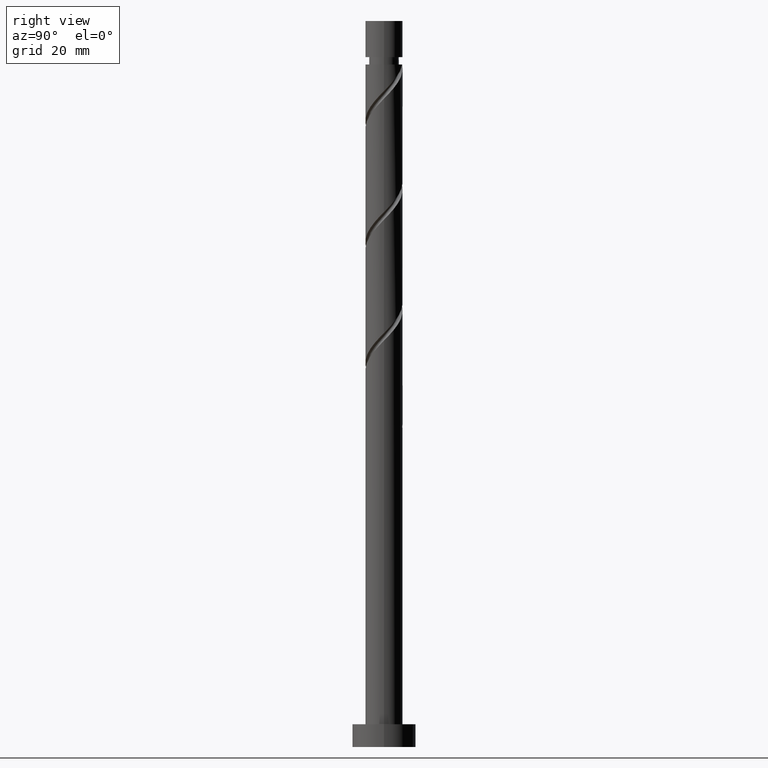
[diagram: clean part render]
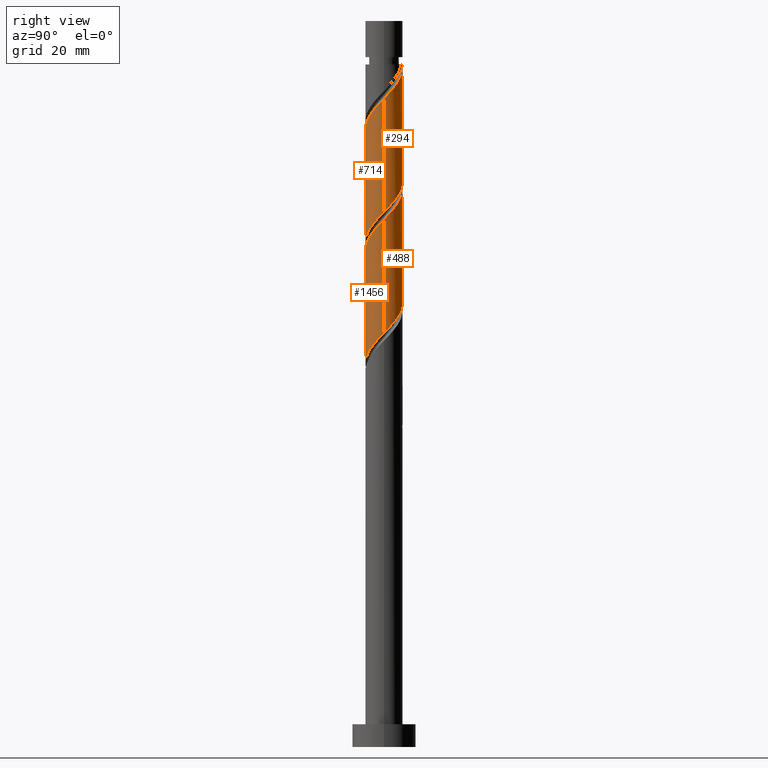
[diagram: same view with one multi-face feature highlighted, each face labeled with its STEP entity id]
A machine part, right view. The highlighted faces form ONE feature: a constant-radius fillet chain: 4 tangent blend faces with common blend radius 4.1 mm. The faces share edges in the B-rep.
Their STEP definitions:
[1] entity #1456 (Cylinder):
#10 = CARTESIAN_POINT ( 'NONE',  ( -0.3491609805032963032, -4.085105458821597146, 109.1961636561453588 ) ) ;
#28 = CARTESIAN_POINT ( 'NONE',  ( 2.436092808849637859, -3.350067383216988492, 112.2264666864483615 ) ) ;
#72 = CARTESIAN_POINT ( 'NONE',  ( 3.281236982628831456, -2.528039459591578275, 113.4385878985696081 ) ) ;
#129 = CARTESIAN_POINT ( 'NONE',  ( 0.000000000000000000, 0.000000000000000000, 160.0000000000000000 ) ) ;
#139 = CARTESIAN_POINT ( 'NONE',  ( -0.9365104741622179985, -4.034903688715220760, 108.5901030500847639 ) ) ;
#196 =( BOUNDED_CURVE ( )  B_SPLINE_CURVE ( 2, ( #386, #1414, #782, #1295, #272, #1174, #663, #262, #916, #1283, #1433, #139, #10, #280, #527, #790, #1303, #28, #508, #72, #1061, #1079, #798, #1087, #932 ),
 .UNSPECIFIED., .F., .T. ) 
 B_SPLINE_CURVE_WITH_KNOTS ( ( 3, 2, 2, 2, 2, 2, 2, 2, 2, 2, 2, 2, 3 ),
 ( 0.3045252162417512176, 0.3068181818181817677, 0.3181818181818182323, 0.3295454545454545858, 0.3409090909090909394, 0.3522727272727272929, 0.3636363636363636465, 0.3750000000000000000, 0.3863636363636363535, 0.3977272727272727071, 0.4090909090909090606, 0.4204545454545454142, 0.4295252162417513841 ),
 .UNSPECIFIED. ) 
 CURVE ( )  GEOMETRIC_REPRESENTATION_ITEM ( )  RATIONAL_B_SPLINE_CURVE ( ( 0.9061101570135607908, 0.9072237824201428991, 0.9090909090909204959, 0.8998376744372229563, 0.9090909090909204959, 0.8998376744372229563, 0.9090909090909204959, 0.8998376744372229563, 0.9090909090909204959, 0.8998376744372229563, 0.9090909090909204959, 0.8998376744372229563, 0.9090909090909204959, 0.8998376744372229563, 0.9090909090909204959, 0.8998376744372229563, 0.9090909090909204959, 0.8998376744372229563, 0.9090909090909204959, 0.8998376744372229563, 0.9090909090909204959, 0.8998376744372229563, 0.9090909090909204959, 0.9017048011080004422, 0.9061101570135610128 ) ) 
 REPRESENTATION_ITEM ( '' )  );
#204 = CARTESIAN_POINT ( 'NONE',  ( 4.059318004229828247, -0.8242796770264084749, 90.40828486826657695 ) ) ;
#214 = CARTESIAN_POINT ( 'NONE',  ( -3.993834187014790871, -0.9269781478718408518, 78.89313335311504716 ) ) ;
#241 = DIRECTION ( 'NONE',  ( -0.000000000000000000, -0.000000000000000000, -1.000000000000000000 ) ) ;
#262 = CARTESIAN_POINT ( 'NONE',  ( -2.969276373543973335, -2.888061194458452885, 106.1658606258423134 ) ) ;
#272 = CARTESIAN_POINT ( 'NONE',  ( -3.860989342997054319, -1.379406137895296647, 104.3476788076604720 ) ) ;
#280 = CARTESIAN_POINT ( 'NONE',  ( 0.2381885131556253921, -4.135307228927973533, 109.8022242622059395 ) ) ;
#300 = CARTESIAN_POINT ( 'NONE',  ( -1.914841846274432990, -3.625380077144507496, 82.52949698947867319 ) ) ;
#308 = CARTESIAN_POINT ( 'NONE',  ( -4.100000000000000533, 3.499896044618180531E-15, 77.92440601423412261 ) ) ;
#317 = CARTESIAN_POINT ( 'NONE',  ( -4.100000000000004974, -2.497789057483899821E-15, 102.8921637222990029 ) ) ;
#329 = CARTESIAN_POINT ( 'NONE',  ( -2.858664895739232215, -2.939053421404278943, 81.31737577735745504 ) ) ;
#354 = VECTOR ( 'NONE', #241, 1000.000000000000000 ) ;
#386 = CARTESIAN_POINT ( 'NONE',  ( -4.100000000000004974, -2.497789057483899821E-15, 102.8921637222990029 ) ) ;
#413 = EDGE_CURVE ( 'NONE', #505, #509, #1463, .T. ) ;
#433 = CARTESIAN_POINT ( 'NONE',  ( 4.100000000000000533, -4.292607541903494346E-15, 91.25773934756747963 ) ) ;
#442 = CARTESIAN_POINT ( 'NONE',  ( 3.662660681764268400, -1.934532598764185041, 89.19616365614537301 ) ) ;
#462 = CARTESIAN_POINT ( 'NONE',  ( 4.099999999999999645, -0.1179796587476802661, 91.13564134284926865 ) ) ;
#505 = VERTEX_POINT ( 'NONE', #433 ) ;
#508 = CARTESIAN_POINT ( 'NONE',  ( 2.858664895739234879, -2.939053421404283384, 112.8325272925089848 ) ) ;
#509 = VERTEX_POINT ( 'NONE', #308 ) ;
#515 = VERTEX_POINT ( 'NONE', #317 ) ;
#527 = CARTESIAN_POINT ( 'NONE',  ( 0.8158896984274283115, -4.018000000000004235, 110.4082848682665201 ) ) ;
#582 = CARTESIAN_POINT ( 'NONE',  ( 4.100000000000000533, -4.292607541903494346E-15, 91.25773934756747963 ) ) ;
#594 = EDGE_CURVE ( 'NONE', #515, #509, #751, .T. ) ;
#607 = CARTESIAN_POINT ( 'NONE',  ( -4.099999999999999645, 0.000000000000000000, 160.0000000000000000 ) ) ;
#663 = CARTESIAN_POINT ( 'NONE',  ( -3.315968527654123754, -2.411296896611319962, 105.5598000197817328 ) ) ;
#699 = CARTESIAN_POINT ( 'NONE',  ( 3.860989342997047213, -1.379406137895296425, 89.80222426220595366 ) ) ;
#716 = ORIENTED_EDGE ( 'NONE', *, *, #1609, .F. ) ;
#720 = CARTESIAN_POINT ( 'NONE',  ( -4.100000000000000533, 3.499896044618180531E-15, 77.92440601423412261 ) ) ;
#751 = LINE ( 'NONE', #607, #354 ) ;
#773 = FACE_OUTER_BOUND ( 'NONE', #1415, .T. ) ;
#782 = CARTESIAN_POINT ( 'NONE',  ( -4.093215763958131248, -0.2357640975311769138, 103.1355575955392823 ) ) ;
#790 = CARTESIAN_POINT ( 'NONE',  ( 1.393590883699231009, -3.900692771072035825, 111.0143454743271434 ) ) ;
#798 = CARTESIAN_POINT ( 'NONE',  ( 3.993834187014794868, -0.9269781478718425172, 115.2567697167514069 ) ) ;
#818 = CARTESIAN_POINT ( 'NONE',  ( -3.281236982628828791, -2.528039459591573834, 80.71131517129687438 ) ) ;
#868 = VECTOR ( 'NONE', #1020, 1000.000000000000000 ) ;
#881 = ORIENTED_EDGE ( 'NONE', *, *, #413, .F. ) ;
#884 = EDGE_CURVE ( 'NONE', #1292, #505, #1157, .T. ) ;
#916 = CARTESIAN_POINT ( 'NONE',  ( -2.502307663024829765, -3.247838721298710762, 106.7719212319029083 ) ) ;
#932 = CARTESIAN_POINT ( 'NONE',  ( 4.100000000000004974, 2.348220850448935583E-15, 116.2254970556323599 ) ) ;
#948 = AXIS2_PLACEMENT_3D ( 'NONE', #129, #1047, #1563 ) ;
#952 = CARTESIAN_POINT ( 'NONE',  ( -3.860554850343155486, -1.501204813779628777, 79.49919395917565623 ) ) ;
#959 = CARTESIAN_POINT ( 'NONE',  ( 1.485924713333949043, -3.821259968427091369, 86.16586062584234185 ) ) ;
#965 = CARTESIAN_POINT ( 'NONE',  ( 2.969276373543970671, -2.888061194458449776, 87.98404244402416907 ) ) ;
#1020 = DIRECTION ( 'NONE',  ( -0.000000000000000000, -0.000000000000000000, -1.000000000000000000 ) ) ;
#1038 = CYLINDRICAL_SURFACE ( 'NONE', #948, 4.099999999999999645 ) ;
#1047 = DIRECTION ( 'NONE',  ( -0.000000000000000000, -0.000000000000000000, -1.000000000000000000 ) ) ;
#1061 = CARTESIAN_POINT ( 'NONE',  ( 3.570895916485996135, -2.014622136685605192, 114.0446485046301888 ) ) ;
#1066 = CARTESIAN_POINT ( 'NONE',  ( -0.8158896984274290887, -4.017999999999998906, 83.74161820159991976 ) ) ;
#1079 = CARTESIAN_POINT ( 'NONE',  ( 3.860554850343161259, -1.501204813779630332, 114.6507091106907836 ) ) ;
#1085 = CARTESIAN_POINT ( 'NONE',  ( -4.099999999999998757, -0.4695686022790074299, 78.41036596720542207 ) ) ;
#1087 = CARTESIAN_POINT ( 'NONE',  ( 4.100000000000005862, -0.4695686022790001579, 115.7395371026610036 ) ) ;
#1101 = CARTESIAN_POINT ( 'NONE',  ( 2.035338952505681753, -3.607616248138966419, 86.77192123190292250 ) ) ;
#1114 = CARTESIAN_POINT ( 'NONE',  ( 4.100000000000004974, 2.348220850448935583E-15, 116.2254970556323599 ) ) ;
#1157 = LINE ( 'NONE', #1297, #868 ) ;
#1174 = CARTESIAN_POINT ( 'NONE',  ( -3.662660681764272397, -1.934532598764186373, 104.9537394137211095 ) ) ;
#1204 = CARTESIAN_POINT ( 'NONE',  ( 3.315968527654118869, -2.411296896611316853, 88.59010305008476394 ) ) ;
#1211 = CARTESIAN_POINT ( 'NONE',  ( 0.3491609805032941383, -4.085105458821592705, 84.95373941372109527 ) ) ;
#1219 = CARTESIAN_POINT ( 'NONE',  ( -2.436092808849634750, -3.350067383216984940, 81.92343638341810674 ) ) ;
#1229 = CARTESIAN_POINT ( 'NONE',  ( -3.570895916485992139, -2.014622136685600751, 80.10525456523626531 ) ) ;
#1258 = ORIENTED_EDGE ( 'NONE', *, *, #884, .F. ) ;
#1278 = ORIENTED_EDGE ( 'NONE', *, *, #594, .T. ) ;
#1283 = CARTESIAN_POINT ( 'NONE',  ( -2.035338952505686194, -3.607616248138969528, 107.3779818379635316 ) ) ;
#1292 = VERTEX_POINT ( 'NONE', #1114 ) ;
#1295 = CARTESIAN_POINT ( 'NONE',  ( -4.059318004229832688, -0.8242796770264076978, 103.7416182015999055 ) ) ;
#1297 = CARTESIAN_POINT ( 'NONE',  ( 4.099999999999999645, 5.021051876504147385E-16, 160.0000000000000000 ) ) ;
#1303 = CARTESIAN_POINT ( 'NONE',  ( 1.914841846274433879, -3.625380077144512825, 111.6204060803877667 ) ) ;
#1360 = CARTESIAN_POINT ( 'NONE',  ( -0.2381885131556268631, -4.135307228927969980, 84.34767880766051462 ) ) ;
#1414 = CARTESIAN_POINT ( 'NONE',  ( -4.100000000000005862, -0.1179796587476673597, 103.0142617270172281 ) ) ;
#1415 = EDGE_LOOP ( 'NONE', ( #1258, #716, #1278, #881 ) ) ;
#1433 = CARTESIAN_POINT ( 'NONE',  ( -1.485924713333952374, -3.821259968427094478, 107.9840424440241407 ) ) ;
#1456 = ADVANCED_FACE ( 'NONE', ( #773 ), #1038, .T. ) ;
#1462 = CARTESIAN_POINT ( 'NONE',  ( 4.093215763958126807, -0.2357640975311781073, 91.01434547432720024 ) ) ;
#1463 =( BOUNDED_CURVE ( )  B_SPLINE_CURVE ( 2, ( #582, #462, #1462, #204, #699, #442, #1204, #965, #1597, #1101, #959, #1489, #1211, #1360, #1066, #1623, #300, #1219, #329, #818, #1229, #952, #214, #1085, #720 ),
 .UNSPECIFIED., .F., .T. ) 
 B_SPLINE_CURVE_WITH_KNOTS ( ( 3, 2, 2, 2, 2, 2, 2, 2, 2, 2, 2, 2, 3 ),
 ( 0.8045252162417514397, 0.8068181818181817677, 0.8181818181818182323, 0.8295454545454545858, 0.8409090909090909394, 0.8522727272727272929, 0.8636363636363636465, 0.8750000000000000000, 0.8863636363636363535, 0.8977272727272727071, 0.9090909090909090606, 0.9204545454545454142, 0.9295252162417512176 ),
 .UNSPECIFIED. ) 
 CURVE ( )  GEOMETRIC_REPRESENTATION_ITEM ( )  RATIONAL_B_SPLINE_CURVE ( ( 0.9061101570135555727, 0.9072237824201376810, 0.9090909090909150558, 0.8998376744372174052, 0.9090909090909150558, 0.8998376744372174052, 0.9090909090909150558, 0.8998376744372174052, 0.9090909090909150558, 0.8998376744372174052, 0.9090909090909150558, 0.8998376744372174052, 0.9090909090909150558, 0.8998376744372174052, 0.9090909090909150558, 0.8998376744372174052, 0.9090909090909150558, 0.8998376744372174052, 0.9090909090909150558, 0.8998376744372174052, 0.9090909090909150558, 0.8998376744372174052, 0.9090909090909150558, 0.9017048011079950021, 0.9061101570135553507 ) ) 
 REPRESENTATION_ITEM ( '' )  );
#1489 = CARTESIAN_POINT ( 'NONE',  ( 0.9365104741622172213, -4.034903688715216319, 85.55980001978169014 ) ) ;
#1563 = DIRECTION ( 'NONE',  ( -1.000000000000000000, 0.000000000000000000, 0.000000000000000000 ) ) ;
#1597 = CARTESIAN_POINT ( 'NONE',  ( 2.502307663024826212, -3.247838721298708098, 87.37798183796353158 ) ) ;
#1609 = EDGE_CURVE ( 'NONE', #515, #1292, #196, .T. ) ;
#1623 = CARTESIAN_POINT ( 'NONE',  ( -1.393590883699231231, -3.900692771072030052, 83.13555759553928226 ) ) ;
[2] entity #488 (Cylinder):
#83 = CARTESIAN_POINT ( 'NONE',  ( -2.436092808849637859, 3.350067383216989381, 125.5598000197817043 ) ) ;
#100 = CARTESIAN_POINT ( 'NONE',  ( 4.093215763958131248, 0.2357640975311764975, 116.4688909288726251 ) ) ;
#106 = CARTESIAN_POINT ( 'NONE',  ( -3.662660681764268400, 1.934532598764185041, 102.5294969894787016 ) ) ;
#112 = CARTESIAN_POINT ( 'NONE',  ( -3.860989342997047213, 1.379406137895296203, 103.1355575955393107 ) ) ;
#130 =( BOUNDED_CURVE ( )  B_SPLINE_CURVE ( 2, ( #1396, #988, #969, #596, #112, #106, #1097, #351, #1645, #1621, #880, #628, #1649, #621, #499, #1104, #1120, #1532, #366, #466, #1628, #980, #1502, #1372, #340 ),
 .UNSPECIFIED., .F., .T. ) 
 B_SPLINE_CURVE_WITH_KNOTS ( ( 3, 2, 2, 2, 2, 2, 2, 2, 2, 2, 2, 2, 3 ),
 ( 0.6795252162417512176, 0.6818181818181817677, 0.6931818181818182323, 0.7045454545454545858, 0.7159090909090909394, 0.7272727272727272929, 0.7386363636363636465, 0.7500000000000000000, 0.7613636363636363535, 0.7727272727272727071, 0.7840909090909090606, 0.7954545454545454142, 0.8045252162417514397 ),
 .UNSPECIFIED. ) 
 CURVE ( )  GEOMETRIC_REPRESENTATION_ITEM ( )  RATIONAL_B_SPLINE_CURVE ( ( 0.9061101570135553507, 0.9072237824201374590, 0.9090909090909150558, 0.8998376744372174052, 0.9090909090909150558, 0.8998376744372174052, 0.9090909090909150558, 0.8998376744372174052, 0.9090909090909150558, 0.8998376744372174052, 0.9090909090909150558, 0.8998376744372174052, 0.9090909090909150558, 0.8998376744372174052, 0.9090909090909150558, 0.8998376744372174052, 0.9090909090909150558, 0.8998376744372174052, 0.9090909090909150558, 0.8998376744372174052, 0.9090909090909150558, 0.8998376744372174052, 0.9090909090909150558, 0.9017048011079947800, 0.9061101570135555727 ) ) 
 REPRESENTATION_ITEM ( '' )  );
#219 = CARTESIAN_POINT ( 'NONE',  ( -3.570895916485996580, 2.014622136685604747, 127.3779818379635316 ) ) ;
#226 = CARTESIAN_POINT ( 'NONE',  ( -3.281236982628831456, 2.528039459591577387, 126.7719212319029225 ) ) ;
#239 = CARTESIAN_POINT ( 'NONE',  ( 3.315968527654123754, 2.411296896611318630, 118.8931333531150329 ) ) ;
#268 = ORIENTED_EDGE ( 'NONE', *, *, #884, .T. ) ;
#290 = CARTESIAN_POINT ( 'NONE',  ( -4.100000000000004974, -2.497789057483899821E-15, 129.5588303889656743 ) ) ;
#323 = DIRECTION ( 'NONE',  ( -1.000000000000000000, 0.000000000000000000, 0.000000000000000000 ) ) ;
#334 = CARTESIAN_POINT ( 'NONE',  ( 3.860989342997054319, 1.379406137895296203, 117.6810121409938148 ) ) ;
#340 = CARTESIAN_POINT ( 'NONE',  ( 4.100000000000000533, -4.292607541903494346E-15, 91.25773934756747963 ) ) ;
#351 = CARTESIAN_POINT ( 'NONE',  ( -2.969276373543969338, 2.888061194458450220, 101.3173757773574977 ) ) ;
#357 = CARTESIAN_POINT ( 'NONE',  ( 2.035338952505684862, 3.607616248138969972, 120.7113151712968460 ) ) ;
#366 = CARTESIAN_POINT ( 'NONE',  ( 2.858664895739231326, 2.939053421404278943, 94.65070911069079784 ) ) ;
#393 = ORIENTED_EDGE ( 'NONE', *, *, #1308, .F. ) ;
#405 = CARTESIAN_POINT ( 'NONE',  ( -4.099999999999999645, 0.000000000000000000, 160.0000000000000000 ) ) ;
#433 = CARTESIAN_POINT ( 'NONE',  ( 4.100000000000000533, -4.292607541903494346E-15, 91.25773934756747963 ) ) ;
#466 = CARTESIAN_POINT ( 'NONE',  ( 3.281236982628828347, 2.528039459591575611, 94.04464850463020298 ) ) ;
#488 = ADVANCED_FACE ( 'NONE', ( #690 ), #563, .T. ) ;
#491 = CARTESIAN_POINT ( 'NONE',  ( 0.9365104741622185536, 4.034903688715220760, 121.9234363834180641 ) ) ;
#499 = CARTESIAN_POINT ( 'NONE',  ( 0.8158896984274295328, 4.017999999999998906, 97.07495153493323414 ) ) ;
#505 = VERTEX_POINT ( 'NONE', #433 ) ;
#536 = LINE ( 'NONE', #405, #737 ) ;
#563 = CYLINDRICAL_SURFACE ( 'NONE', #1383, 4.099999999999999645 ) ;
#596 = CARTESIAN_POINT ( 'NONE',  ( -4.059318004229828247, 0.8242796770264079198, 103.7416182015999055 ) ) ;
#615 = VERTEX_POINT ( 'NONE', #883 ) ;
#621 = CARTESIAN_POINT ( 'NONE',  ( 0.2381885131556257806, 4.135307228927969092, 97.68101214099384322 ) ) ;
#628 = CARTESIAN_POINT ( 'NONE',  ( -0.9365104741622166662, 4.034903688715216319, 98.89313335311507558 ) ) ;
#690 = FACE_OUTER_BOUND ( 'NONE', #1524, .T. ) ;
#725 = CARTESIAN_POINT ( 'NONE',  ( 2.502307663024828432, 3.247838721298712095, 120.1052545652362511 ) ) ;
#737 = VECTOR ( 'NONE', #793, 1000.000000000000000 ) ;
#742 = CARTESIAN_POINT ( 'NONE',  ( -0.2381885131556249202, 4.135307228927973533, 123.1355575955392965 ) ) ;
#749 = CARTESIAN_POINT ( 'NONE',  ( -1.393590883699232341, 3.900692771072034937, 124.3476788076604862 ) ) ;
#793 = DIRECTION ( 'NONE',  ( -0.000000000000000000, -0.000000000000000000, -1.000000000000000000 ) ) ;
#816 = ORIENTED_EDGE ( 'NONE', *, *, #1361, .F. ) ;
#849 = CARTESIAN_POINT ( 'NONE',  ( 2.969276373543974223, 2.888061194458451997, 119.4991939591756562 ) ) ;
#850 = VERTEX_POINT ( 'NONE', #290 ) ;
#856 = CARTESIAN_POINT ( 'NONE',  ( -3.860554850343159039, 1.501204813779631664, 127.9840424440241122 ) ) ;
#868 = VECTOR ( 'NONE', #1020, 1000.000000000000000 ) ;
#873 = CARTESIAN_POINT ( 'NONE',  ( 1.485924713333951042, 3.821259968427094922, 121.3173757773574408 ) ) ;
#880 = CARTESIAN_POINT ( 'NONE',  ( -1.485924713333949043, 3.821259968427091369, 99.49919395917564202 ) ) ;
#883 = CARTESIAN_POINT ( 'NONE',  ( -4.100000000000000533, 3.499896044618180531E-15, 104.5910726809008082 ) ) ;
#884 = EDGE_CURVE ( 'NONE', #1292, #505, #1157, .T. ) ;
#955 = EDGE_CURVE ( 'NONE', #850, #615, #536, .T. ) ;
#969 = CARTESIAN_POINT ( 'NONE',  ( -4.093215763958126807, 0.2357640975311775799, 104.3476788076605004 ) ) ;
#980 = CARTESIAN_POINT ( 'NONE',  ( 3.860554850343157707, 1.501204813779627001, 92.83252729250897062 ) ) ;
#988 = CARTESIAN_POINT ( 'NONE',  ( -4.100000000000000533, 0.1179796587476682063, 104.4689746761825972 ) ) ;
#994 = CARTESIAN_POINT ( 'NONE',  ( -4.100000000000004974, -2.497789057483899821E-15, 129.5588303889656743 ) ) ;
#1004 = CARTESIAN_POINT ( 'NONE',  ( 0.3491609805032967473, 4.085105458821597146, 122.5294969894786874 ) ) ;
#1020 = DIRECTION ( 'NONE',  ( -0.000000000000000000, -0.000000000000000000, -1.000000000000000000 ) ) ;
#1077 = ORIENTED_EDGE ( 'NONE', *, *, #955, .F. ) ;
#1097 = CARTESIAN_POINT ( 'NONE',  ( -3.315968527654118425, 2.411296896611316853, 101.9234363834180783 ) ) ;
#1104 = CARTESIAN_POINT ( 'NONE',  ( 1.393590883699231453, 3.900692771072030052, 96.46889092887265349 ) ) ;
#1114 = CARTESIAN_POINT ( 'NONE',  ( 4.100000000000004974, 2.348220850448935583E-15, 116.2254970556323599 ) ) ;
#1120 = CARTESIAN_POINT ( 'NONE',  ( 1.914841846274433435, 3.625380077144507496, 95.86283032281203020 ) ) ;
#1128 = CARTESIAN_POINT ( 'NONE',  ( -2.858664895739234879, 2.939053421404283384, 126.1658606258423561 ) ) ;
#1157 = LINE ( 'NONE', #1297, #868 ) ;
#1225 = CARTESIAN_POINT ( 'NONE',  ( -1.914841846274434767, 3.625380077144511493, 124.9537394137210811 ) ) ;
#1232 = CARTESIAN_POINT ( 'NONE',  ( -4.100000000000004974, 0.4695686022790022118, 129.0728704359943322 ) ) ;
#1254 = CARTESIAN_POINT ( 'NONE',  ( -3.993834187014794423, 0.9269781478718429613, 128.5901030500847355 ) ) ;
#1292 = VERTEX_POINT ( 'NONE', #1114 ) ;
#1297 = CARTESIAN_POINT ( 'NONE',  ( 4.099999999999999645, 5.021051876504147385E-16, 160.0000000000000000 ) ) ;
#1308 = EDGE_CURVE ( 'NONE', #1292, #850, #1520, .T. ) ;
#1361 = EDGE_CURVE ( 'NONE', #615, #505, #130, .T. ) ;
#1372 = CARTESIAN_POINT ( 'NONE',  ( 4.100000000000002309, 0.4695686022789947733, 91.74369930053876487 ) ) ;
#1379 = CARTESIAN_POINT ( 'NONE',  ( 4.100000000000004974, 0.1179796587476756864, 116.3475950603505851 ) ) ;
#1383 = AXIS2_PLACEMENT_3D ( 'NONE', #1472, #1590, #323 ) ;
#1390 = CARTESIAN_POINT ( 'NONE',  ( -0.8158896984274280895, 4.018000000000004235, 123.7416182015999198 ) ) ;
#1396 = CARTESIAN_POINT ( 'NONE',  ( -4.100000000000000533, 3.499896044618180531E-15, 104.5910726809008082 ) ) ;
#1472 = CARTESIAN_POINT ( 'NONE',  ( 0.000000000000000000, 0.000000000000000000, 160.0000000000000000 ) ) ;
#1495 = CARTESIAN_POINT ( 'NONE',  ( 4.100000000000004974, 2.348220850448935583E-15, 116.2254970556323599 ) ) ;
#1502 = CARTESIAN_POINT ( 'NONE',  ( 3.993834187014790871, 0.9269781478718395196, 92.22646668644837575 ) ) ;
#1520 =( BOUNDED_CURVE ( )  B_SPLINE_CURVE ( 2, ( #1495, #1379, #100, #1522, #334, #1636, #239, #849, #725, #357, #873, #491, #1004, #742, #1390, #749, #1225, #83, #1128, #226, #219, #856, #1254, #1232, #994 ),
 .UNSPECIFIED., .F., .T. ) 
 B_SPLINE_CURVE_WITH_KNOTS ( ( 3, 2, 2, 2, 2, 2, 2, 2, 2, 2, 2, 2, 3 ),
 ( 0.4295252162417513841, 0.4318181818181817677, 0.4431818181818182323, 0.4545454545454545858, 0.4659090909090909394, 0.4772727272727272929, 0.4886363636363636465, 0.5000000000000000000, 0.5113636363636363535, 0.5227272727272727071, 0.5340909090909091717, 0.5454545454545454142, 0.5545252162417514397 ),
 .UNSPECIFIED. ) 
 CURVE ( )  GEOMETRIC_REPRESENTATION_ITEM ( )  RATIONAL_B_SPLINE_CURVE ( ( 0.9061101570135610128, 0.9072237824201430101, 0.9090909090909204959, 0.8998376744372229563, 0.9090909090909204959, 0.8998376744372229563, 0.9090909090909204959, 0.8998376744372229563, 0.9090909090909204959, 0.8998376744372229563, 0.9090909090909204959, 0.8998376744372229563, 0.9090909090909204959, 0.8998376744372229563, 0.9090909090909204959, 0.8998376744372229563, 0.9090909090909204959, 0.8998376744372229563, 0.9090909090909204959, 0.8998376744372229563, 0.9090909090909204959, 0.8998376744372229563, 0.9090909090909204959, 0.9017048011080003311, 0.9061101570135610128 ) ) 
 REPRESENTATION_ITEM ( '' )  );
#1522 = CARTESIAN_POINT ( 'NONE',  ( 4.059318004229832688, 0.8242796770264073647, 117.0749515349332199 ) ) ;
#1524 = EDGE_LOOP ( 'NONE', ( #393, #268, #816, #1077 ) ) ;
#1532 = CARTESIAN_POINT ( 'NONE',  ( 2.436092808849635194, 3.350067383216984052, 95.25676971675143534 ) ) ;
#1590 = DIRECTION ( 'NONE',  ( -0.000000000000000000, -0.000000000000000000, -1.000000000000000000 ) ) ;
#1621 = CARTESIAN_POINT ( 'NONE',  ( -2.035338952505683086, 3.607616248138966419, 100.1052545652362653 ) ) ;
#1628 = CARTESIAN_POINT ( 'NONE',  ( 3.570895916485992139, 2.014622136685602083, 93.43858789856960811 ) ) ;
#1636 = CARTESIAN_POINT ( 'NONE',  ( 3.662660681764273285, 1.934532598764185485, 118.2870727470544381 ) ) ;
#1645 = CARTESIAN_POINT ( 'NONE',  ( -2.502307663024826656, 3.247838721298707654, 100.7113151712968744 ) ) ;
#1649 = CARTESIAN_POINT ( 'NONE',  ( -0.3491609805032953595, 4.085105458821591817, 98.28707274705446650 ) ) ;
[3] entity #714 (Cylinder):
#87 = CARTESIAN_POINT ( 'NONE',  ( -2.436092808849634750, -3.350067383216984940, 108.5901030500847781 ) ) ;
#109 = CARTESIAN_POINT ( 'NONE',  ( -0.3491609805032963032, -4.085105458821597146, 135.8628303228120160 ) ) ;
#115 = CARTESIAN_POINT ( 'NONE',  ( 0.000000000000000000, 0.000000000000000000, 160.0000000000000000 ) ) ;
#124 = CARTESIAN_POINT ( 'NONE',  ( -1.485924713333952374, -3.821259968427094478, 134.6507091106908263 ) ) ;
#149 = CARTESIAN_POINT ( 'NONE',  ( 3.993834187014794868, -0.9269781478718425172, 141.9234363834181067 ) ) ;
#193 = EDGE_CURVE ( 'NONE', #202, #615, #769, .T. ) ;
#202 = VERTEX_POINT ( 'NONE', #1111 ) ;
#235 = CARTESIAN_POINT ( 'NONE',  ( -3.860989342997054319, -1.379406137895296647, 131.0143454743271434 ) ) ;
#274 = CARTESIAN_POINT ( 'NONE',  ( 3.281236982628831456, -2.528039459591578275, 140.1052545652362653 ) ) ;
#290 = CARTESIAN_POINT ( 'NONE',  ( -4.100000000000004974, -2.497789057483899821E-15, 129.5588303889656743 ) ) ;
#331 = CARTESIAN_POINT ( 'NONE',  ( 0.3491609805032941383, -4.085105458821592705, 111.6204060803877809 ) ) ;
#338 = CARTESIAN_POINT ( 'NONE',  ( 0.9365104741622172213, -4.034903688715216319, 112.2264666864484042 ) ) ;
#361 = CARTESIAN_POINT ( 'NONE',  ( -4.059318004229832688, -0.8242796770264076978, 130.4082848682665201 ) ) ;
#372 = VERTEX_POINT ( 'NONE', #1335 ) ;
#378 = CARTESIAN_POINT ( 'NONE',  ( 1.393590883699231009, -3.900692771072035825, 137.6810121409938290 ) ) ;
#380 = CARTESIAN_POINT ( 'NONE',  ( 4.100000000000000533, -0.1179796587476688724, 117.8023080095159401 ) ) ;
#405 = CARTESIAN_POINT ( 'NONE',  ( -4.099999999999999645, 0.000000000000000000, 160.0000000000000000 ) ) ;
#463 = CARTESIAN_POINT ( 'NONE',  ( 1.485924713333949043, -3.821259968427091369, 112.8325272925090133 ) ) ;
#473 = CARTESIAN_POINT ( 'NONE',  ( -3.860554850343155486, -1.501204813779628777, 106.1658606258423418 ) ) ;
#530 = CARTESIAN_POINT ( 'NONE',  ( 0.8158896984274283115, -4.018000000000004235, 137.0749515349332057 ) ) ;
#536 = LINE ( 'NONE', #405, #737 ) ;
#610 = CARTESIAN_POINT ( 'NONE',  ( -4.100000000000000533, 3.499896044618180531E-15, 104.5910726809008082 ) ) ;
#613 = LINE ( 'NONE', #1247, #895 ) ;
#615 = VERTEX_POINT ( 'NONE', #883 ) ;
#638 = ORIENTED_EDGE ( 'NONE', *, *, #1284, .F. ) ;
#640 = CARTESIAN_POINT ( 'NONE',  ( -0.9365104741622179985, -4.034903688715220760, 135.2567697167514211 ) ) ;
#648 = CARTESIAN_POINT ( 'NONE',  ( 3.860554850343161259, -1.501204813779630332, 141.3173757773574266 ) ) ;
#667 = CARTESIAN_POINT ( 'NONE',  ( 2.436092808849637859, -3.350067383216988492, 138.8931333531150756 ) ) ;
#714 = ADVANCED_FACE ( 'NONE', ( #1236 ), #1375, .T. ) ;
#715 = CARTESIAN_POINT ( 'NONE',  ( 3.860989342997047213, -1.379406137895296425, 116.4688909288726251 ) ) ;
#722 = EDGE_CURVE ( 'NONE', #850, #372, #1506, .T. ) ;
#730 = CARTESIAN_POINT ( 'NONE',  ( -3.570895916485992139, -2.014622136685600751, 106.7719212319029225 ) ) ;
#737 = VECTOR ( 'NONE', #793, 1000.000000000000000 ) ;
#745 = CARTESIAN_POINT ( 'NONE',  ( -3.662660681764272397, -1.934532598764186373, 131.6204060803877383 ) ) ;
#769 =( BOUNDED_CURVE ( )  B_SPLINE_CURVE ( 2, ( #1015, #380, #960, #893, #715, #1222, #1410, #1499, #1094, #1617, #463, #338, #331, #854, #966, #1362, #1230, #87, #1102, #1624, #730, #473, #1369, #1238, #610 ),
 .UNSPECIFIED., .F., .T. ) 
 B_SPLINE_CURVE_WITH_KNOTS ( ( 3, 2, 2, 2, 2, 2, 2, 2, 2, 2, 2, 2, 3 ),
 ( 0.5545252162417512176, 0.5568181818181817677, 0.5681818181818182323, 0.5795454545454545858, 0.5909090909090909394, 0.6022727272727272929, 0.6136363636363636465, 0.6250000000000000000, 0.6363636363636363535, 0.6477272727272727071, 0.6590909090909090606, 0.6704545454545454142, 0.6795252162417512176 ),
 .UNSPECIFIED. ) 
 CURVE ( )  GEOMETRIC_REPRESENTATION_ITEM ( )  RATIONAL_B_SPLINE_CURVE ( ( 0.9061101570135553507, 0.9072237824201374590, 0.9090909090909150558, 0.8998376744372174052, 0.9090909090909150558, 0.8998376744372174052, 0.9090909090909150558, 0.8998376744372174052, 0.9090909090909150558, 0.8998376744372174052, 0.9090909090909150558, 0.8998376744372174052, 0.9090909090909150558, 0.8998376744372174052, 0.9090909090909150558, 0.8998376744372174052, 0.9090909090909150558, 0.8998376744372174052, 0.9090909090909150558, 0.8998376744372174052, 0.9090909090909150558, 0.8998376744372174052, 0.9090909090909150558, 0.9017048011079950021, 0.9061101570135553507 ) ) 
 REPRESENTATION_ITEM ( '' )  );
#793 = DIRECTION ( 'NONE',  ( -0.000000000000000000, -0.000000000000000000, -1.000000000000000000 ) ) ;
#850 = VERTEX_POINT ( 'NONE', #290 ) ;
#854 = CARTESIAN_POINT ( 'NONE',  ( -0.2381885131556268631, -4.135307228927969980, 111.0143454743271718 ) ) ;
#867 = CARTESIAN_POINT ( 'NONE',  ( -4.100000000000004974, -0.1179796587476742431, 129.6809283936839279 ) ) ;
#883 = CARTESIAN_POINT ( 'NONE',  ( -4.100000000000000533, 3.499896044618180531E-15, 104.5910726809008082 ) ) ;
#893 = CARTESIAN_POINT ( 'NONE',  ( 4.059318004229828247, -0.8242796770264084749, 117.0749515349332484 ) ) ;
#895 = VECTOR ( 'NONE', #1240, 1000.000000000000000 ) ;
#896 = EDGE_LOOP ( 'NONE', ( #638, #1226, #1402, #1486 ) ) ;
#955 = EDGE_CURVE ( 'NONE', #850, #615, #536, .T. ) ;
#960 = CARTESIAN_POINT ( 'NONE',  ( 4.093215763958126807, -0.2357640975311781073, 117.6810121409938574 ) ) ;
#966 = CARTESIAN_POINT ( 'NONE',  ( -0.8158896984274290887, -4.017999999999998906, 110.4082848682665627 ) ) ;
#1013 = CARTESIAN_POINT ( 'NONE',  ( 4.100000000000004974, 2.348220850448935583E-15, 142.8921637222990455 ) ) ;
#1015 = CARTESIAN_POINT ( 'NONE',  ( 4.100000000000000533, -4.292607541903494346E-15, 117.9244060142341510 ) ) ;
#1026 = AXIS2_PLACEMENT_3D ( 'NONE', #115, #1243, #1639 ) ;
#1049 = CARTESIAN_POINT ( 'NONE',  ( 1.914841846274433879, -3.625380077144512825, 138.2870727470543954 ) ) ;
#1094 = CARTESIAN_POINT ( 'NONE',  ( 2.502307663024826212, -3.247838721298708098, 114.0446485046301888 ) ) ;
#1102 = CARTESIAN_POINT ( 'NONE',  ( -2.858664895739232215, -2.939053421404278943, 107.9840424440241691 ) ) ;
#1111 = CARTESIAN_POINT ( 'NONE',  ( 4.100000000000000533, -4.292607541903494346E-15, 117.9244060142341652 ) ) ;
#1147 = CARTESIAN_POINT ( 'NONE',  ( 3.570895916485996135, -2.014622136685605192, 140.7113151712968317 ) ) ;
#1184 = CARTESIAN_POINT ( 'NONE',  ( 4.100000000000004974, -0.4695686022790018788, 142.4062037693277034 ) ) ;
#1222 = CARTESIAN_POINT ( 'NONE',  ( 3.662660681764268400, -1.934532598764185041, 115.8628303228120444 ) ) ;
#1226 = ORIENTED_EDGE ( 'NONE', *, *, #722, .F. ) ;
#1230 = CARTESIAN_POINT ( 'NONE',  ( -1.914841846274432990, -3.625380077144507496, 109.1961636561453446 ) ) ;
#1236 = FACE_OUTER_BOUND ( 'NONE', #896, .T. ) ;
#1238 = CARTESIAN_POINT ( 'NONE',  ( -4.099999999999998757, -0.4695686022790074299, 105.0770326338720935 ) ) ;
#1240 = DIRECTION ( 'NONE',  ( -0.000000000000000000, -0.000000000000000000, -1.000000000000000000 ) ) ;
#1243 = DIRECTION ( 'NONE',  ( -0.000000000000000000, -0.000000000000000000, -1.000000000000000000 ) ) ;
#1247 = CARTESIAN_POINT ( 'NONE',  ( 4.099999999999999645, 5.021051876504147385E-16, 160.0000000000000000 ) ) ;
#1250 = CARTESIAN_POINT ( 'NONE',  ( -2.969276373543973335, -2.888061194458452885, 132.8325272925089848 ) ) ;
#1264 = CARTESIAN_POINT ( 'NONE',  ( -2.035338952505686194, -3.607616248138969528, 134.0446485046302030 ) ) ;
#1284 = EDGE_CURVE ( 'NONE', #372, #202, #613, .T. ) ;
#1335 = CARTESIAN_POINT ( 'NONE',  ( 4.100000000000004974, 2.348220850448935583E-15, 142.8921637222990455 ) ) ;
#1362 = CARTESIAN_POINT ( 'NONE',  ( -1.393590883699231231, -3.900692771072030052, 109.8022242622059821 ) ) ;
#1369 = CARTESIAN_POINT ( 'NONE',  ( -3.993834187014790871, -0.9269781478718408518, 105.5598000197817328 ) ) ;
#1375 = CYLINDRICAL_SURFACE ( 'NONE', #1026, 4.099999999999999645 ) ;
#1385 = CARTESIAN_POINT ( 'NONE',  ( -4.093215763958131248, -0.2357640975311769138, 129.8022242622059537 ) ) ;
#1402 = ORIENTED_EDGE ( 'NONE', *, *, #955, .T. ) ;
#1410 = CARTESIAN_POINT ( 'NONE',  ( 3.315968527654118869, -2.411296896611316853, 115.2567697167514069 ) ) ;
#1444 = CARTESIAN_POINT ( 'NONE',  ( 2.858664895739234879, -2.939053421404283384, 139.4991939591756420 ) ) ;
#1486 = ORIENTED_EDGE ( 'NONE', *, *, #193, .F. ) ;
#1499 = CARTESIAN_POINT ( 'NONE',  ( 2.969276373543970671, -2.888061194458449776, 114.6507091106907978 ) ) ;
#1506 =( BOUNDED_CURVE ( )  B_SPLINE_CURVE ( 2, ( #1516, #867, #1385, #361, #235, #745, #1653, #1250, #1534, #1264, #124, #640, #109, #1647, #530, #378, #1049, #667, #1444, #274, #1147, #648, #149, #1184, #1013 ),
 .UNSPECIFIED., .F., .T. ) 
 B_SPLINE_CURVE_WITH_KNOTS ( ( 3, 2, 2, 2, 2, 2, 2, 2, 2, 2, 2, 2, 3 ),
 ( 0.5545252162417514397, 0.5568181818181818787, 0.5681818181818181213, 0.5795454545454545858, 0.5909090909090908283, 0.6022727272727272929, 0.6136363636363636465, 0.6250000000000000000, 0.6363636363636363535, 0.6477272727272727071, 0.6590909090909091717, 0.6704545454545454142, 0.6795252162417514397 ),
 .UNSPECIFIED. ) 
 CURVE ( )  GEOMETRIC_REPRESENTATION_ITEM ( )  RATIONAL_B_SPLINE_CURVE ( ( 0.9061101570135610128, 0.9072237824201431211, 0.9090909090909204959, 0.8998376744372229563, 0.9090909090909204959, 0.8998376744372229563, 0.9090909090909204959, 0.8998376744372229563, 0.9090909090909204959, 0.8998376744372229563, 0.9090909090909204959, 0.8998376744372229563, 0.9090909090909204959, 0.8998376744372229563, 0.9090909090909204959, 0.8998376744372229563, 0.9090909090909204959, 0.8998376744372229563, 0.9090909090909204959, 0.8998376744372229563, 0.9090909090909204959, 0.8998376744372229563, 0.9090909090909204959, 0.9017048011080003311, 0.9061101570135610128 ) ) 
 REPRESENTATION_ITEM ( '' )  );
#1516 = CARTESIAN_POINT ( 'NONE',  ( -4.100000000000004974, -2.497789057483899821E-15, 129.5588303889656743 ) ) ;
#1534 = CARTESIAN_POINT ( 'NONE',  ( -2.502307663024829765, -3.247838721298710762, 133.4385878985695513 ) ) ;
#1617 = CARTESIAN_POINT ( 'NONE',  ( 2.035338952505681753, -3.607616248138966419, 113.4385878985695939 ) ) ;
#1624 = CARTESIAN_POINT ( 'NONE',  ( -3.281236982628828791, -2.528039459591573834, 107.3779818379635174 ) ) ;
#1639 = DIRECTION ( 'NONE',  ( -1.000000000000000000, 0.000000000000000000, 0.000000000000000000 ) ) ;
#1647 = CARTESIAN_POINT ( 'NONE',  ( 0.2381885131556253921, -4.135307228927973533, 136.4688909288725824 ) ) ;
#1653 = CARTESIAN_POINT ( 'NONE',  ( -3.315968527654123754, -2.411296896611319962, 132.2264666864483900 ) ) ;
[4] entity #294 (Cylinder):
#17 = CARTESIAN_POINT ( 'NONE',  ( 3.860989342997054319, 1.379406137895296203, 144.3476788076604862 ) ) ;
#32 = CARTESIAN_POINT ( 'NONE',  ( -0.8158896984274479625, 4.018000000000002458, 150.4082848682665770 ) ) ;
#34 = CARTESIAN_POINT ( 'NONE',  ( -4.059318004229828247, 0.8242796770264079198, 130.4082848682666054 ) ) ;
#37 = EDGE_LOOP ( 'NONE', ( #1613, #500, #362, #752, #342 ) ) ;
#41 = CARTESIAN_POINT ( 'NONE',  ( 0.9365104741622185536, 4.034903688715220760, 148.5901030500846787 ) ) ;
#53 = CARTESIAN_POINT ( 'NONE',  ( -2.969276373543969338, 2.888061194458450220, 127.9840424440241407 ) ) ;
#71 = CARTESIAN_POINT ( 'NONE',  ( 3.860554850343157707, 1.501204813779627001, 119.4991939591756562 ) ) ;
#79 = EDGE_CURVE ( 'NONE', #1348, #202, #350, .T. ) ;
#113 = VERTEX_POINT ( 'NONE', #1118 ) ;
#116 = EDGE_CURVE ( 'NONE', #113, #1348, #481, .T. ) ;
#164 = CARTESIAN_POINT ( 'NONE',  ( 2.035338952505684862, 3.607616248138969972, 147.3779818379634889 ) ) ;
#202 = VERTEX_POINT ( 'NONE', #1111 ) ;
#260 = EDGE_CURVE ( 'NONE', #372, #1529, #1110, .T. ) ;
#267 = CARTESIAN_POINT ( 'NONE',  ( -0.2381885131556422952, 4.135307228927974421, 149.8022242622059537 ) ) ;
#294 = ADVANCED_FACE ( 'NONE', ( #778 ), #532, .T. ) ;
#295 = CARTESIAN_POINT ( 'NONE',  ( -4.093215763958126807, 0.2357640975311775799, 131.0143454743271434 ) ) ;
#342 = ORIENTED_EDGE ( 'NONE', *, *, #368, .T. ) ;
#346 = CARTESIAN_POINT ( 'NONE',  ( -4.099999999999999645, 0.000000000000000000, 160.0000000000000000 ) ) ;
#350 =( BOUNDED_CURVE ( )  B_SPLINE_CURVE ( 2, ( #797, #1196, #295, #34, #409, #547, #700, #53, #556, #1578, #1188, #1457, #1327, #565, #1205, #1508, #1212, #1542, #1350, #837, #1632, #71, #1481, #1086, #1608 ),
 .UNSPECIFIED., .F., .T. ) 
 B_SPLINE_CURVE_WITH_KNOTS ( ( 3, 2, 2, 2, 2, 2, 2, 2, 2, 2, 2, 2, 3 ),
 ( 0.4295252162417514397, 0.4318181818181818232, 0.4431818181818181768, 0.4545454545454545303, 0.4659090909090908839, 0.4772727272727272929, 0.4886363636363636465, 0.5000000000000000000, 0.5113636363636363535, 0.5227272727272727071, 0.5340909090909090606, 0.5454545454545454142, 0.5545252162417512176 ),
 .UNSPECIFIED. ) 
 CURVE ( )  GEOMETRIC_REPRESENTATION_ITEM ( )  RATIONAL_B_SPLINE_CURVE ( ( 0.9061101570135554617, 0.9072237824201375700, 0.9090909090909150558, 0.8998376744372174052, 0.9090909090909150558, 0.8998376744372174052, 0.9090909090909150558, 0.8998376744372174052, 0.9090909090909150558, 0.8998376744372174052, 0.9090909090909150558, 0.8998376744372174052, 0.9090909090909150558, 0.8998376744372174052, 0.9090909090909150558, 0.8998376744372174052, 0.9090909090909150558, 0.8998376744372174052, 0.9090909090909150558, 0.8998376744372174052, 0.9090909090909150558, 0.8998376744372174052, 0.9090909090909150558, 0.9017048011079950021, 0.9061101570135553507 ) ) 
 REPRESENTATION_ITEM ( '' )  );
#355 = AXIS2_PLACEMENT_3D ( 'NONE', #1170, #844, #1344 ) ;
#362 = ORIENTED_EDGE ( 'NONE', *, *, #79, .F. ) ;
#368 = EDGE_CURVE ( 'NONE', #113, #1529, #1650, .T. ) ;
#372 = VERTEX_POINT ( 'NONE', #1335 ) ;
#391 = CARTESIAN_POINT ( 'NONE',  ( 4.059318004229832688, 0.8242796770264073647, 143.7416182015999198 ) ) ;
#399 = DIRECTION ( 'NONE',  ( -1.000000000000000000, 0.000000000000000000, 0.000000000000000000 ) ) ;
#409 = CARTESIAN_POINT ( 'NONE',  ( -3.860989342997047213, 1.379406137895296203, 129.8022242622059821 ) ) ;
#424 = CARTESIAN_POINT ( 'NONE',  ( 3.662660681764273285, 1.934532598764185485, 144.9537394137210526 ) ) ;
#475 = CARTESIAN_POINT ( 'NONE',  ( -4.100000000000000533, -2.228566284820977997E-15, 131.2577393475674228 ) ) ;
#481 = LINE ( 'NONE', #346, #971 ) ;
#500 = ORIENTED_EDGE ( 'NONE', *, *, #1284, .T. ) ;
#532 = CYLINDRICAL_SURFACE ( 'NONE', #550, 4.099999999999999645 ) ;
#547 = CARTESIAN_POINT ( 'NONE',  ( -3.662660681764268400, 1.934532598764185041, 129.1961636561453304 ) ) ;
#550 = AXIS2_PLACEMENT_3D ( 'NONE', #1035, #1289, #399 ) ;
#556 = CARTESIAN_POINT ( 'NONE',  ( -2.502307663024826656, 3.247838721298707654, 127.3779818379635458 ) ) ;
#565 = CARTESIAN_POINT ( 'NONE',  ( 0.2381885131556257806, 4.135307228927969092, 124.3476788076605430 ) ) ;
#613 = LINE ( 'NONE', #1247, #895 ) ;
#700 = CARTESIAN_POINT ( 'NONE',  ( -3.315968527654118425, 2.411296896611316853, 128.5901030500847355 ) ) ;
#723 = DIRECTION ( 'NONE',  ( -0.000000000000000000, -0.000000000000000000, -1.000000000000000000 ) ) ;
#752 = ORIENTED_EDGE ( 'NONE', *, *, #116, .F. ) ;
#764 = CARTESIAN_POINT ( 'NONE',  ( -0.8158896984274479625, 4.018000000000002458, 150.4082848682665770 ) ) ;
#778 = FACE_OUTER_BOUND ( 'NONE', #37, .T. ) ;
#797 = CARTESIAN_POINT ( 'NONE',  ( -4.100000000000000533, -2.228566284820977997E-15, 131.2577393475674228 ) ) ;
#837 = CARTESIAN_POINT ( 'NONE',  ( 3.281236982628828347, 2.528039459591575611, 120.7113151712968602 ) ) ;
#844 = DIRECTION ( 'NONE',  ( -0.000000000000000000, -0.000000000000000000, -1.000000000000000000 ) ) ;
#895 = VECTOR ( 'NONE', #1240, 1000.000000000000000 ) ;
#903 = CARTESIAN_POINT ( 'NONE',  ( 3.315968527654123754, 2.411296896611318630, 145.5598000197816475 ) ) ;
#912 = CARTESIAN_POINT ( 'NONE',  ( 4.093215763958131248, 0.2357640975311764975, 143.1355575955393249 ) ) ;
#921 = CARTESIAN_POINT ( 'NONE',  ( 1.485924713333951042, 3.821259968427094922, 147.9840424440241691 ) ) ;
#971 = VECTOR ( 'NONE', #723, 1000.000000000000000 ) ;
#1023 = CARTESIAN_POINT ( 'NONE',  ( 4.100000000000004974, 2.348220850448935583E-15, 142.8921637222990455 ) ) ;
#1035 = CARTESIAN_POINT ( 'NONE',  ( 0.000000000000000000, 0.000000000000000000, 160.0000000000000000 ) ) ;
#1086 = CARTESIAN_POINT ( 'NONE',  ( 4.099999999999999645, 0.4695686022790061531, 118.4103659672054505 ) ) ;
#1110 =( BOUNDED_CURVE ( )  B_SPLINE_CURVE ( 2, ( #1023, #1187, #912, #391, #17, #424, #903, #1161, #1307, #164, #921, #41, #1439, #267, #32 ),
 .UNSPECIFIED., .F., .T. ) 
 B_SPLINE_CURVE_WITH_KNOTS ( ( 3, 2, 2, 2, 2, 2, 2, 3 ),
 ( 0.6795252162417514397, 0.6818181818181818787, 0.6931818181818182323, 0.7045454545454546968, 0.7159090909090910504, 0.7272727272727275150, 0.7386363636363639795, 0.7500000000000003331 ),
 .UNSPECIFIED. ) 
 CURVE ( )  GEOMETRIC_REPRESENTATION_ITEM ( )  RATIONAL_B_SPLINE_CURVE ( ( 0.9061101570135610128, 0.9072237824201431211, 0.9090909090909204959, 0.8998376744372229563, 0.9090909090909204959, 0.8998376744372229563, 0.9090909090909204959, 0.8998376744372229563, 0.9090909090909204959, 0.8998376744372229563, 0.9090909090909204959, 0.8998376744372229563, 0.9090909090909204959, 0.8998376744372227343, 0.9090909090909207180 ) ) 
 REPRESENTATION_ITEM ( '' )  );
#1111 = CARTESIAN_POINT ( 'NONE',  ( 4.100000000000000533, -4.292607541903494346E-15, 117.9244060142341652 ) ) ;
#1118 = CARTESIAN_POINT ( 'NONE',  ( -4.099999999999993427, 0.000000000000000000, 150.4082848682665770 ) ) ;
#1161 = CARTESIAN_POINT ( 'NONE',  ( 2.969276373543974223, 2.888061194458451997, 146.1658606258422708 ) ) ;
#1170 = CARTESIAN_POINT ( 'NONE',  ( 0.000000000000000000, 0.000000000000000000, 150.4082848682665770 ) ) ;
#1187 = CARTESIAN_POINT ( 'NONE',  ( 4.100000000000004974, 0.1179796587476739933, 143.0142617270172707 ) ) ;
#1188 = CARTESIAN_POINT ( 'NONE',  ( -1.485924713333949043, 3.821259968427091369, 126.1658606258423418 ) ) ;
#1196 = CARTESIAN_POINT ( 'NONE',  ( -4.100000000000000533, 0.1179796587476767689, 131.1356413428492260 ) ) ;
#1205 = CARTESIAN_POINT ( 'NONE',  ( 0.8158896984274295328, 4.017999999999998906, 123.7416182015998629 ) ) ;
#1212 = CARTESIAN_POINT ( 'NONE',  ( 1.914841846274433435, 3.625380077144507496, 122.5294969894787158 ) ) ;
#1240 = DIRECTION ( 'NONE',  ( -0.000000000000000000, -0.000000000000000000, -1.000000000000000000 ) ) ;
#1247 = CARTESIAN_POINT ( 'NONE',  ( 4.099999999999999645, 5.021051876504147385E-16, 160.0000000000000000 ) ) ;
#1284 = EDGE_CURVE ( 'NONE', #372, #202, #613, .T. ) ;
#1289 = DIRECTION ( 'NONE',  ( -0.000000000000000000, -0.000000000000000000, -1.000000000000000000 ) ) ;
#1307 = CARTESIAN_POINT ( 'NONE',  ( 2.502307663024828432, 3.247838721298712095, 146.7719212319028941 ) ) ;
#1327 = CARTESIAN_POINT ( 'NONE',  ( -0.3491609805032953595, 4.085105458821591817, 124.9537394137211095 ) ) ;
#1335 = CARTESIAN_POINT ( 'NONE',  ( 4.100000000000004974, 2.348220850448935583E-15, 142.8921637222990455 ) ) ;
#1344 = DIRECTION ( 'NONE',  ( -1.000000000000000000, 0.000000000000000000, 0.000000000000000000 ) ) ;
#1348 = VERTEX_POINT ( 'NONE', #475 ) ;
#1350 = CARTESIAN_POINT ( 'NONE',  ( 2.858664895739231326, 2.939053421404278943, 121.3173757773574835 ) ) ;
#1439 = CARTESIAN_POINT ( 'NONE',  ( 0.3491609805032967473, 4.085105458821597146, 149.1961636561453872 ) ) ;
#1457 = CARTESIAN_POINT ( 'NONE',  ( -0.9365104741622166662, 4.034903688715216319, 125.5598000197817043 ) ) ;
#1481 = CARTESIAN_POINT ( 'NONE',  ( 3.993834187014790871, 0.9269781478718395196, 118.8931333531150187 ) ) ;
#1508 = CARTESIAN_POINT ( 'NONE',  ( 1.393590883699231453, 3.900692771072030052, 123.1355575955393107 ) ) ;
#1529 = VERTEX_POINT ( 'NONE', #764 ) ;
#1542 = CARTESIAN_POINT ( 'NONE',  ( 2.436092808849635194, 3.350067383216984052, 121.9234363834180783 ) ) ;
#1578 = CARTESIAN_POINT ( 'NONE',  ( -2.035338952505683086, 3.607616248138966419, 126.7719212319029509 ) ) ;
#1608 = CARTESIAN_POINT ( 'NONE',  ( 4.100000000000000533, -4.292607541903494346E-15, 117.9244060142341510 ) ) ;
#1613 = ORIENTED_EDGE ( 'NONE', *, *, #260, .F. ) ;
#1632 = CARTESIAN_POINT ( 'NONE',  ( 3.570895916485992139, 2.014622136685602083, 120.1052545652362653 ) ) ;
#1650 = CIRCLE ( 'NONE', #355, 4.099999999999993427 ) ;